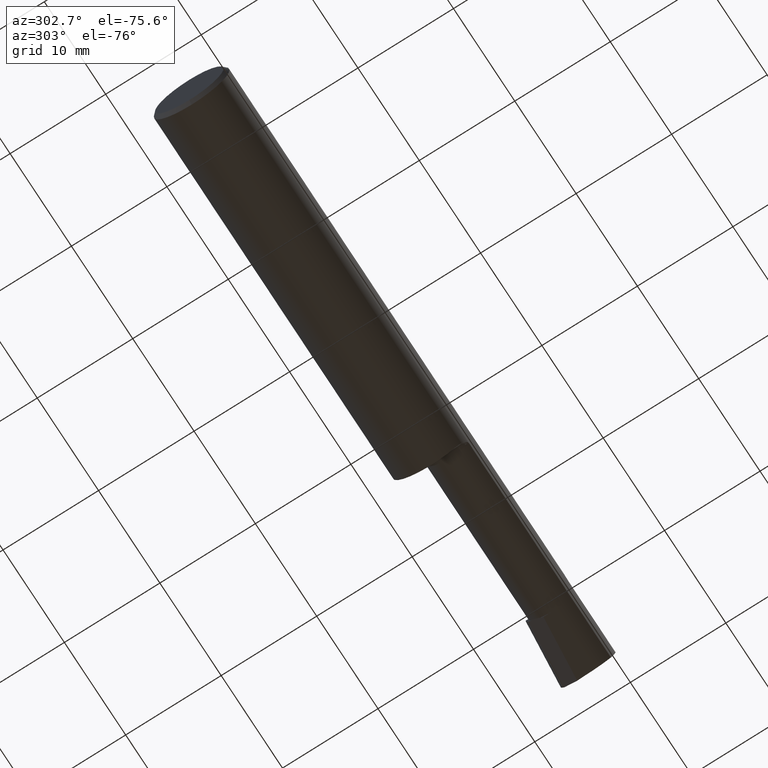
[diagram: clean part render]
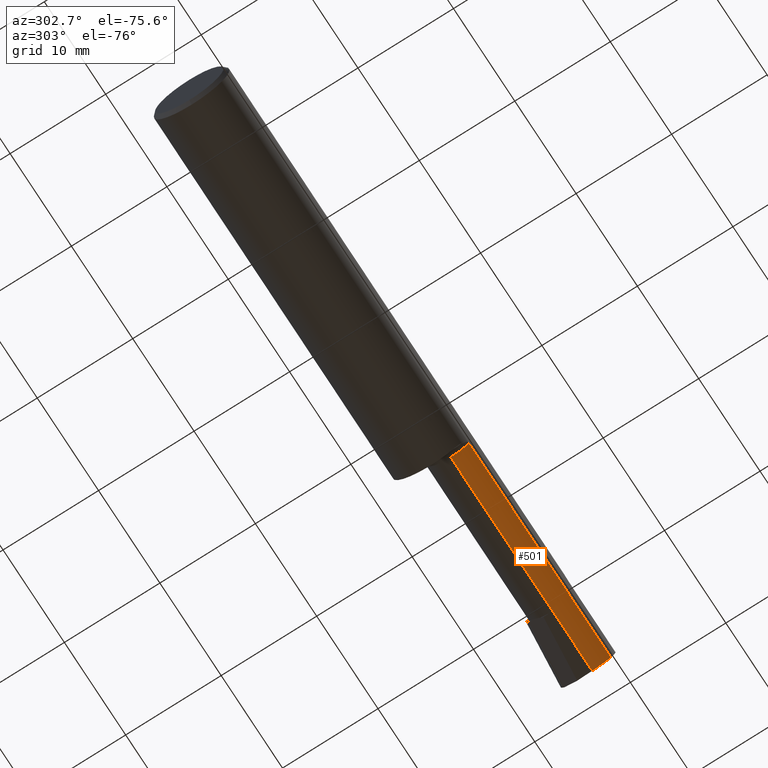
[diagram: same view with one face highlighted and labeled with its STEP entity id]
A machine part, auxiliary view. The second image highlights one B-rep face of the part: STEP entity #501.
In plain terms, the highlighted cylindrical surface (edge-blend (fillet) strip) has radius 2.54 mm, axis along (-1, -0, -0).
Its self-contained STEP definition (entity closure, byte-faithful):
#16 = EDGE_LOOP ( 'NONE', ( #585, #1236, #388, #1060, #784 ) ) ;
#32 = DIRECTION ( 'NONE',  ( 0.000000000000000000, 0.000000000000000000, 1.000000000000000000 ) ) ;
#42 = DIRECTION ( 'NONE',  ( -1.000000000000000000, -0.000000000000000000, -0.000000000000000000 ) ) ;
#122 = CARTESIAN_POINT ( 'NONE',  ( 63.09565101948187760, -1.678939999999999433, -2.540000000000000480 ) ) ;
#134 = DIRECTION ( 'NONE',  ( -1.000000000000000000, -0.000000000000000000, -0.000000000000000000 ) ) ;
#203 = AXIS2_PLACEMENT_3D ( 'NONE', #724, #1215, #32 ) ;
#208 = CARTESIAN_POINT ( 'NONE',  ( 56.64199999999999591, -1.678939999999999433, -2.540000000000000480 ) ) ;
#227 = CARTESIAN_POINT ( 'NONE',  ( 63.50000000000004263, -1.678939999999999433, -2.540000000000000480 ) ) ;
#229 = CARTESIAN_POINT ( 'NONE',  ( 40.00499999999999545, -1.678939999999999433, 0.000000000000000000 ) ) ;
#273 = CARTESIAN_POINT ( 'NONE',  ( 63.09615684788646917, -3.109668751225286520, -2.228461364918260745 ) ) ;
#304 = CARTESIAN_POINT ( 'NONE',  ( 40.00499999999999545, -3.599887049924355154, -1.661794942640913098 ) ) ;
#338 = FACE_OUTER_BOUND ( 'NONE', #16, .T. ) ;
#344 = CYLINDRICAL_SURFACE ( 'NONE', #203, 2.540000000000000036 ) ;
#385 = LINE ( 'NONE', #227, #505 ) ;
#388 = ORIENTED_EDGE ( 'NONE', *, *, #1220, .F. ) ;
#407 = EDGE_CURVE ( 'NONE', #896, #902, #699, .T. ) ;
#501 = ADVANCED_FACE ( 'NONE', ( #338 ), #344, .T. ) ;
#505 = VECTOR ( 'NONE', #42, 1000.000000000000000 ) ;
#524 = VECTOR ( 'NONE', #1069, 1000.000000000000000 ) ;
#585 = ORIENTED_EDGE ( 'NONE', *, *, #407, .F. ) ;
#590 = EDGE_CURVE ( 'NONE', #713, #816, #921, .T. ) ;
#601 = VECTOR ( 'NONE', #134, 1000.000000000000000 ) ;
#603 = EDGE_CURVE ( 'NONE', #816, #902, #1152, .T. ) ;
#617 =( BOUNDED_CURVE ( )  B_SPLINE_CURVE ( 3, ( #1143, #273, #1046, #664 ),
 .UNSPECIFIED., .F., .F. ) 
 B_SPLINE_CURVE_WITH_KNOTS ( ( 4, 4 ),
 ( 5.637230215764978070, 6.494836076230749988 ),
 .UNSPECIFIED. ) 
 CURVE ( )  GEOMETRIC_REPRESENTATION_ITEM ( )  RATIONAL_B_SPLINE_CURVE ( ( 1.000000000000000000, 0.9396427478180650050, 0.9396427478180650050, 1.000000000000000000 ) ) 
 REPRESENTATION_ITEM ( '' )  );
#648 = CARTESIAN_POINT ( 'NONE',  ( 63.15280151554064503, -3.599887049924355598, -1.661794942640913542 ) ) ;
#664 = CARTESIAN_POINT ( 'NONE',  ( 63.09565101948187760, -1.678939999999999433, -2.540000000000000480 ) ) ;
#699 = LINE ( 'NONE', #781, #524 ) ;
#713 = VERTEX_POINT ( 'NONE', #648 ) ;
#724 = CARTESIAN_POINT ( 'NONE',  ( 39.37000000000000455, -1.678939999999999433, 0.000000000000000000 ) ) ;
#781 = CARTESIAN_POINT ( 'NONE',  ( 39.37000000000000455, -1.678939999999999211, -2.540000000000000036 ) ) ;
#784 = ORIENTED_EDGE ( 'NONE', *, *, #603, .T. ) ;
#816 = VERTEX_POINT ( 'NONE', #304 ) ;
#838 = VERTEX_POINT ( 'NONE', #122 ) ;
#859 = EDGE_CURVE ( 'NONE', #838, #896, #385, .T. ) ;
#896 = VERTEX_POINT ( 'NONE', #208 ) ;
#900 = CARTESIAN_POINT ( 'NONE',  ( 40.00499999999999545, -1.678939999999999211, -2.540000000000000036 ) ) ;
#901 = DIRECTION ( 'NONE',  ( 0.000000000000000000, 0.000000000000000000, -1.000000000000000000 ) ) ;
#902 = VERTEX_POINT ( 'NONE', #900 ) ;
#921 = LINE ( 'NONE', #995, #601 ) ;
#995 = CARTESIAN_POINT ( 'NONE',  ( 48.00600000000000023, -3.599887049924355154, -1.661794942640913098 ) ) ;
#1024 = AXIS2_PLACEMENT_3D ( 'NONE', #229, #1209, #901 ) ;
#1046 = CARTESIAN_POINT ( 'NONE',  ( 63.07588300934818903, -2.428222866824017778, -2.540000000000001368 ) ) ;
#1060 = ORIENTED_EDGE ( 'NONE', *, *, #590, .T. ) ;
#1069 = DIRECTION ( 'NONE',  ( -1.000000000000000000, -0.000000000000000000, -0.000000000000000000 ) ) ;
#1143 = CARTESIAN_POINT ( 'NONE',  ( 63.15280151554064503, -3.599887049924355598, -1.661794942640913542 ) ) ;
#1152 = CIRCLE ( 'NONE', #1024, 2.540000000000000036 ) ;
#1209 = DIRECTION ( 'NONE',  ( 1.000000000000000000, 0.000000000000000000, 0.000000000000000000 ) ) ;
#1215 = DIRECTION ( 'NONE',  ( -1.000000000000000000, -0.000000000000000000, -0.000000000000000000 ) ) ;
#1220 = EDGE_CURVE ( 'NONE', #713, #838, #617, .T. ) ;
#1236 = ORIENTED_EDGE ( 'NONE', *, *, #859, .F. ) ;